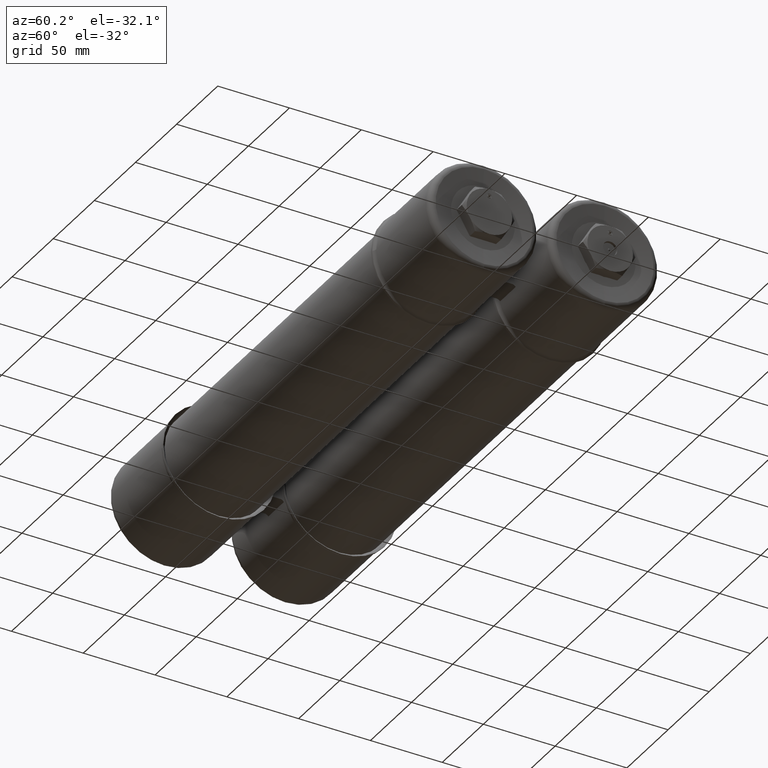
[diagram: clean part render]
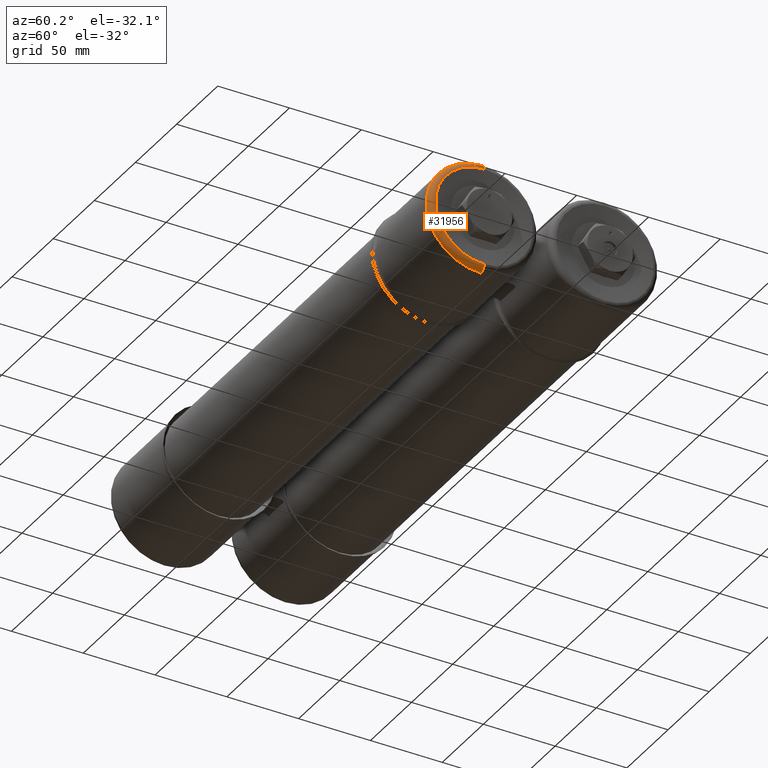
[diagram: same view with one face highlighted and labeled with its STEP entity id]
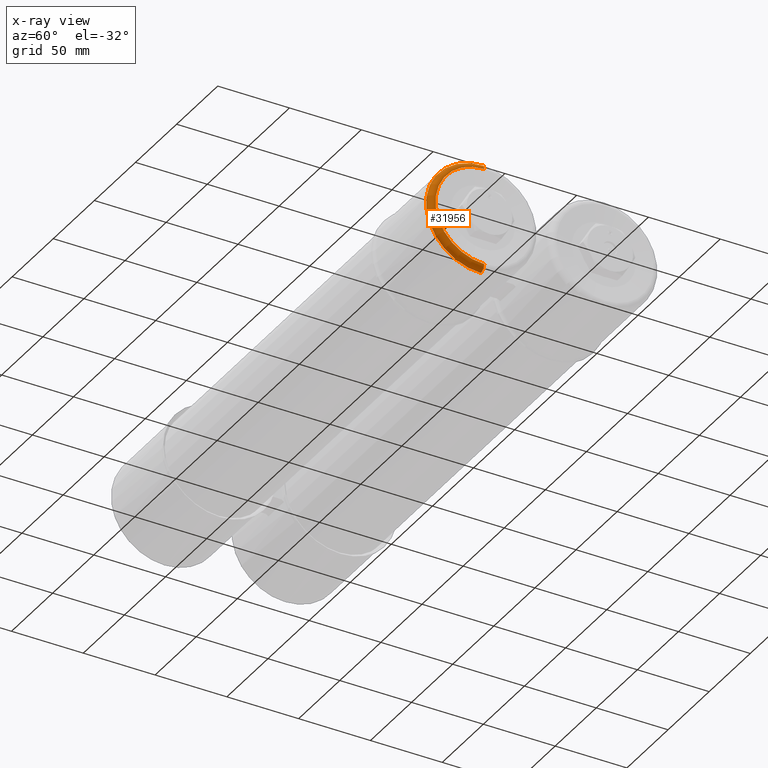
[diagram: x-ray of the same camera — body ghosted, the highlighted face saturated]
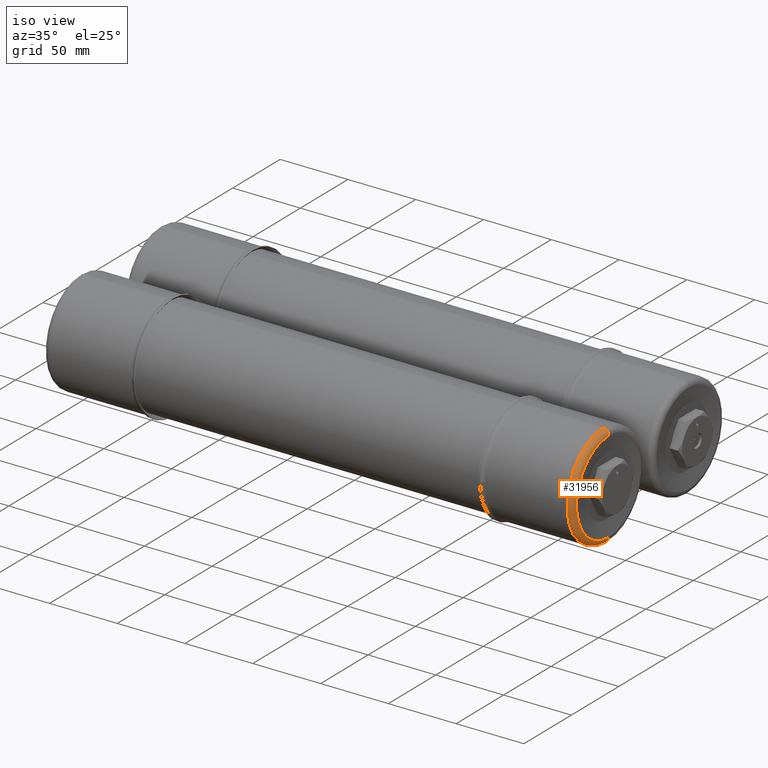
[diagram: same view with one face highlighted and labeled with its STEP entity id]
A machine part, auxiliary view. The second image highlights one B-rep face of the part: STEP entity #31956.
The next image is the same camera in x-ray: the body ghosted, the highlighted face saturated — about 0% of this face is hidden behind the body in this view.
A second angle (iso view) of the same face is appended — the face is thin or edge-on in the first view.
In plain terms, the highlighted toroidal blend (fillet) surface has major radius 33.909 mm and minor (blend) radius 4.1656 mm.
Its self-contained STEP definition (entity closure, byte-faithful):
#320 = CARTESIAN_POINT ( 'NONE',  ( 15.09600000000000364, -8.973079483620521648E-16, 1.334999999999999298 ) ) ;
#2497 = DIRECTION ( 'NONE',  ( 0.000000000000000000, -4.675079767757499064E-16, 1.000000000000000000 ) ) ;
#2927 = DIRECTION ( 'NONE',  ( -1.000000000000000000, -6.121189672418002924E-17, -5.226952353544025296E-16 ) ) ;
#3428 = DIRECTION ( 'NONE',  ( 0.000000000000000000, 4.675079767757505966E-16, -1.000000000000000000 ) ) ;
#3694 = TOROIDAL_SURFACE ( 'NONE', #25621, 1.334999999999999520, 0.1640000000000000069 ) ;
#4138 = AXIS2_PLACEMENT_3D ( 'NONE', #320, #12314, #3428 ) ;
#4628 = FACE_OUTER_BOUND ( 'NONE', #9775, .T. ) ;
#4873 = CIRCLE ( 'NONE', #36187, 1.334999999999999742 ) ;
#6526 = CARTESIAN_POINT ( 'NONE',  ( 15.09600000000000364, -2.731847993664257795E-16, -4.125416584802187817E-16 ) ) ;
#6998 = DIRECTION ( 'NONE',  ( 0.000000000000000000, -4.675079767757501036E-16, 1.000000000000000000 ) ) ;
#8207 = CARTESIAN_POINT ( 'NONE',  ( 15.09600000000000009, -2.731847993664257795E-16, -4.125416584802197677E-16 ) ) ;
#9266 = VERTEX_POINT ( 'NONE', #22152 ) ;
#9307 = DIRECTION ( 'NONE',  ( -5.226952353544025296E-16, -4.675079767757499064E-16, 1.000000000000000000 ) ) ;
#9775 = EDGE_LOOP ( 'NONE', ( #33041, #11452, #21059, #15053 ) ) ;
#11141 = AXIS2_PLACEMENT_3D ( 'NONE', #8207, #11184, #2497 ) ;
#11184 = DIRECTION ( 'NONE',  ( -1.000000000000000000, -6.121189672418002924E-17, -5.226952353544025296E-16 ) ) ;
#11452 = ORIENTED_EDGE ( 'NONE', *, *, #31033, .T. ) ;
#12314 = DIRECTION ( 'NONE',  ( 6.121189672418027576E-17, -1.000000000000000000, -4.675079767757500050E-16 ) ) ;
#14503 = EDGE_CURVE ( 'NONE', #9266, #26875, #28636, .T. ) ;
#15053 = ORIENTED_EDGE ( 'NONE', *, *, #14503, .F. ) ;
#15552 = DIRECTION ( 'NONE',  ( -6.121189672418033739E-17, 1.000000000000000000, 5.899726566904858434E-16 ) ) ;
#16746 = AXIS2_PLACEMENT_3D ( 'NONE', #30448, #15552, #19107 ) ;
#18620 = CIRCLE ( 'NONE', #4138, 0.1639999999999999514 ) ;
#19107 = DIRECTION ( 'NONE',  ( 0.000000000000000000, -5.899726566904861392E-16, 1.000000000000000000 ) ) ;
#19178 = CARTESIAN_POINT ( 'NONE',  ( 15.26000000000000334, 5.678258306953749326E-16, -1.334999999999999742 ) ) ;
#20641 = EDGE_CURVE ( 'NONE', #21763, #26875, #18620, .T. ) ;
#20976 = EDGE_CURVE ( 'NONE', #37227, #9266, #25481, .T. ) ;
#21059 = ORIENTED_EDGE ( 'NONE', *, *, #20641, .T. ) ;
#21763 = VERTEX_POINT ( 'NONE', #25522 ) ;
#22152 = CARTESIAN_POINT ( 'NONE',  ( 15.09600000000000009, 5.314979537381052911E-16, -1.499000000000000110 ) ) ;
#25481 = CIRCLE ( 'NONE', #16746, 0.1639999999999999514 ) ;
#25522 = CARTESIAN_POINT ( 'NONE',  ( 15.26000000000000334, -8.973079483620527565E-16, 1.334999999999999520 ) ) ;
#25621 = AXIS2_PLACEMENT_3D ( 'NONE', #6526, #27510, #9307 ) ;
#26875 = VERTEX_POINT ( 'NONE', #38625 ) ;
#27510 = DIRECTION ( 'NONE',  ( -1.000000000000000000, -6.121189672418002924E-17, -5.226952353544025296E-16 ) ) ;
#28636 = CIRCLE ( 'NONE', #11141, 1.498999999999999666 ) ;
#29829 = CARTESIAN_POINT ( 'NONE',  ( 15.26000000000000334, -2.731847993664265684E-16, -3.301260770374191816E-16 ) ) ;
#30448 = CARTESIAN_POINT ( 'NONE',  ( 15.09600000000000364, 5.144286973153727228E-16, -1.335000000000000409 ) ) ;
#31033 = EDGE_CURVE ( 'NONE', #37227, #21763, #4873, .T. ) ;
#31956 = ADVANCED_FACE ( 'NONE', ( #4628 ), #3694, .T. ) ;
#33041 = ORIENTED_EDGE ( 'NONE', *, *, #20976, .F. ) ;
#36187 = AXIS2_PLACEMENT_3D ( 'NONE', #29829, #2927, #6998 ) ;
#37227 = VERTEX_POINT ( 'NONE', #19178 ) ;
#38625 = CARTESIAN_POINT ( 'NONE',  ( 15.09600000000000009, -9.739792565532748513E-16, 1.498999999999999222 ) ) ;